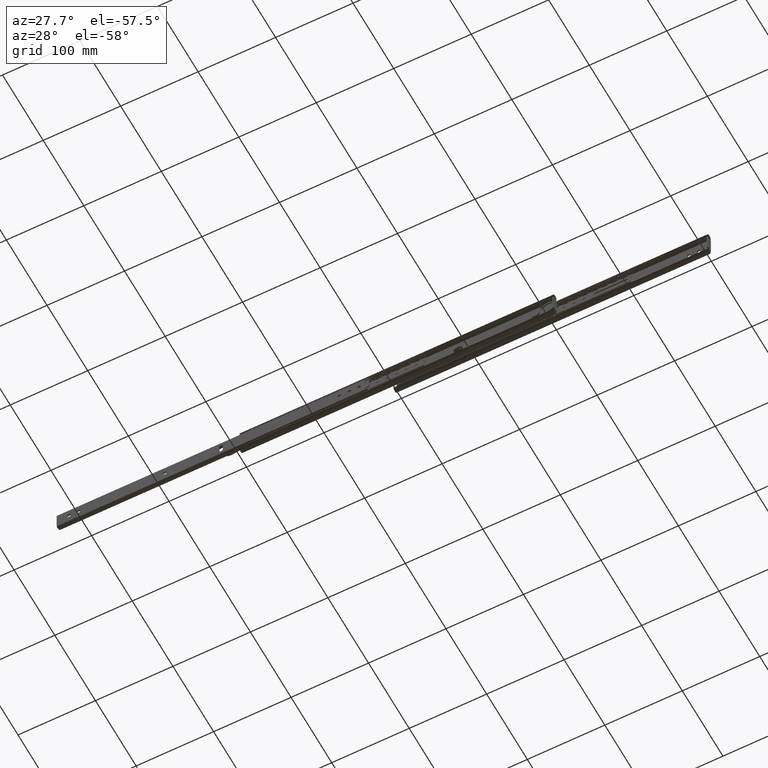
[diagram: clean part render]
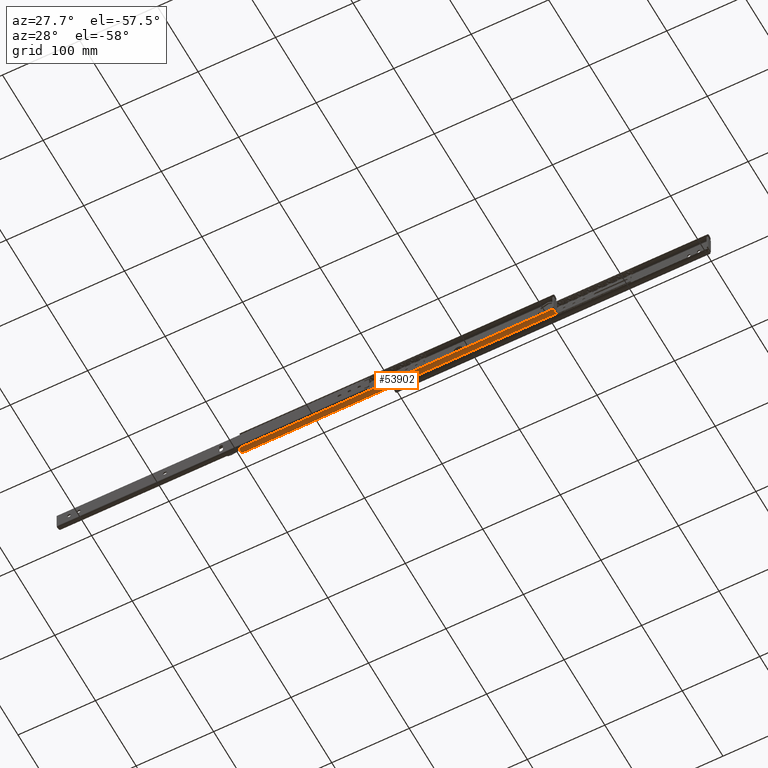
[diagram: same view with one face highlighted and labeled with its STEP entity id]
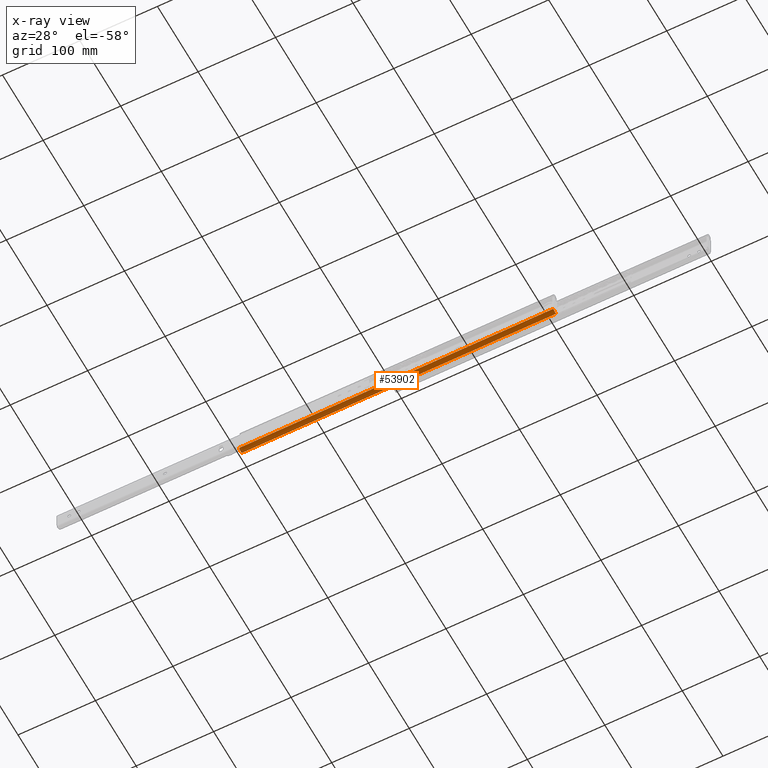
[diagram: x-ray of the same camera — body ghosted, the highlighted face saturated]
A machine part, auxiliary view. The second image highlights one B-rep face of the part: STEP entity #53902.
The next image is the same camera in x-ray: the body ghosted, the highlighted face saturated — about 0% of this face is hidden behind the body in this view.
In plain terms, the highlighted face is a freeform B-spline surface patch.
Its self-contained STEP definition (entity closure, byte-faithful):
#50580=CARTESIAN_POINT('',(-18.299999993714302,15.138563460618050,598.400000000000090));
#50581=VERTEX_POINT('',#50580);
#50582=CARTESIAN_POINT('',(-17.397361481443848,16.501614328666999,600.0));
#50583=VERTEX_POINT('',#50582);
#50584=CARTESIAN_POINT('',(-18.299999993714302,15.138563460618050,598.400000000000090));
#50585=CARTESIAN_POINT('',(-18.300000152610650,15.138563060624060,598.507510650755190));
#50586=CARTESIAN_POINT('',(-18.296078362616019,15.148546636778450,598.613197468237670));
#50587=CARTESIAN_POINT('',(-18.284205451457051,15.177753711239280,598.769101779199790));
#50588=CARTESIAN_POINT('',(-18.279235338719179,15.189876977430041,598.820628880005420));
#50589=CARTESIAN_POINT('',(-18.267076818440529,15.218958878442381,598.922779118537390));
#50590=CARTESIAN_POINT('',(-18.259862174547990,15.235973879352651,598.973457581063260));
#50591=CARTESIAN_POINT('',(-18.235068562867450,15.293049588916350,599.120714077698840));
#50592=CARTESIAN_POINT('',(-18.214272213402140,15.339377905997431,599.213730047606080));
#50593=CARTESIAN_POINT('',(-18.175229616847130,15.420602495763021,599.345529011461510));
#50594=CARTESIAN_POINT('',(-18.160804374952271,15.449821723506480,599.388390999425840));
#50595=CARTESIAN_POINT('',(-18.129370674512259,15.511326164734189,599.470226039969820));
#50596=CARTESIAN_POINT('',(-18.112430805408241,15.543485657188491,599.509084929386520));
#50597=CARTESIAN_POINT('',(-18.057633058469861,15.643828412097900,599.619664179419260));
#50598=CARTESIAN_POINT('',(-18.015838682784050,15.715845951868280,599.685439662761610));
#50599=CARTESIAN_POINT('',(-17.943364282175320,15.830767086955870,599.771909505984350));
#50600=CARTESIAN_POINT('',(-17.917829631880519,15.869798213791251,599.798342710821320));
#50601=CARTESIAN_POINT('',(-17.864384929967400,15.948310864425370,599.846116544576030));
#50602=CARTESIAN_POINT('',(-17.808411749154491,16.027518410732000,599.888982026440660));
#50603=CARTESIAN_POINT('',(-17.747098624700890,16.107761205598461,599.922322139277870));
#50604=CARTESIAN_POINT('',(-17.682936142322511,16.188375003247650,599.950932325407280));
#50605=CARTESIAN_POINT('',(-17.649386098923550,16.228898812355251,599.962849954100190));
#50606=CARTESIAN_POINT('',(-17.546348841798888,16.348385031450938,599.990993506666200));
#50607=CARTESIAN_POINT('',(-17.473837214073779,16.426097027482012,600.000000000000110));
#50608=CARTESIAN_POINT('',(-17.397361481443848,16.501614328666999,600.0));
#50609=B_SPLINE_CURVE_WITH_KNOTS('',3,(#50584,#50585,#50586,#50587,#50588,#50589,#50590,#50591,#50592,#50593,#50594,#50595,#50596,#50597,#50598,#50599,#50600,#50601,#50602,#50603,#50604,#50605,#50606,#50607,#50608),.UNSPECIFIED.,.F.,.U.,(4,2,2,2,2,2,2,2,2,1,2,2,4),(0.0,0.125000000000028,0.187499999999978,0.249999999999927,0.374999999999827,0.437499999999831,0.499999999999836,0.624999999999933,0.687499999999948,0.749999999999963,0.812499999999978,0.874999999999993,1.0),.UNSPECIFIED.);
#50610=EDGE_CURVE('',#50581,#50583,#50609,.T.);
#50766=CARTESIAN_POINT('',(-17.397361481443848,16.501614328666999,194.0));
#50767=VERTEX_POINT('',#50766);
#50768=CARTESIAN_POINT('',(-18.299999993714302,15.138563460618050,195.599999999999990));
#50769=VERTEX_POINT('',#50768);
#50770=CARTESIAN_POINT('',(-17.397361481443848,16.501614328666999,194.0));
#50771=CARTESIAN_POINT('',(-17.473805619575241,16.426128226022779,194.0));
#50772=CARTESIAN_POINT('',(-17.546032535434311,16.348703280249509,194.009002831973990));
#50773=CARTESIAN_POINT('',(-17.648366689732939,16.230104820762129,194.036830947829710));
#50774=CARTESIAN_POINT('',(-17.681474866310442,16.190162416846910,194.048506875193990));
#50775=CARTESIAN_POINT('',(-17.745713980379310,16.109547304402579,194.076973595464890));
#50776=CARTESIAN_POINT('',(-17.776853511728270,16.068838571263111,194.093818583984610));
#50777=CARTESIAN_POINT('',(-17.865269606879451,15.948717816974961,194.151098751051790));
#50778=CARTESIAN_POINT('',(-17.918358795540328,15.870322951846520,194.198518514397190));
#50779=CARTESIAN_POINT('',(-17.990332612938040,15.756336066509411,194.284002465994010));
#50780=CARTESIAN_POINT('',(-18.013163632537609,15.718734348046651,194.315104708912290));
#50781=CARTESIAN_POINT('',(-18.055725418992591,15.646143142053990,194.381318515543710));
#50782=CARTESIAN_POINT('',(-18.075428078467240,15.611224716890440,194.416320724215100));
#50783=CARTESIAN_POINT('',(-18.130331836524402,15.510742359905629,194.526890365007010));
#50784=CARTESIAN_POINT('',(-18.161401111207581,15.449330084751020,194.608092741817300));
#50785=CARTESIAN_POINT('',(-18.214078434105460,15.339821627805470,194.785317902997010));
#50786=CARTESIAN_POINT('',(-18.234910327298831,15.293401327635291,194.878583691911100));
#50787=CARTESIAN_POINT('',(-18.259656052131451,15.236454534644640,195.025201453344610));
#50788=CARTESIAN_POINT('',(-18.266806417014351,15.219599354771910,195.075202352165690));
#50789=CARTESIAN_POINT('',(-18.279044042591440,15.190340599907380,195.177520077977990));
#50790=CARTESIAN_POINT('',(-18.284098708528919,15.178014953838611,195.229663563854390));
#50791=CARTESIAN_POINT('',(-18.296079282785271,15.148547022616791,195.386485037344610));
#50792=CARTESIAN_POINT('',(-18.300000152610650,15.138563060624101,195.492494592945690));
#50793=CARTESIAN_POINT('',(-18.299999993714302,15.138563460618050,195.599999999999990));
#50794=B_SPLINE_CURVE_WITH_KNOTS('',3,(#50770,#50771,#50772,#50773,#50774,#50775,#50776,#50777,#50778,#50779,#50780,#50781,#50782,#50783,#50784,#50785,#50786,#50787,#50788,#50789,#50790,#50791,#50792,#50793),.UNSPECIFIED.,.F.,.U.,(4,2,2,2,2,2,2,2,2,2,2,4),(0.0,0.125000000000010,0.187500000000016,0.250000000000023,0.375000000000026,0.437500000000020,0.500000000000014,0.625000000000026,0.750000000000037,0.812500000000028,0.875000000000019,1.0),.UNSPECIFIED.);
#50795=EDGE_CURVE('',#50767,#50769,#50794,.T.);
#53034=CARTESIAN_POINT('',(-11.484824599747400,16.147869559069349,194.0));
#53035=VERTEX_POINT('',#53034);
#53041=CARTESIAN_POINT('',(-11.420942246821619,16.065402533108600,194.002126666588000));
#53042=VERTEX_POINT('',#53041);
#53043=CARTESIAN_POINT('',(-11.420942246821619,16.065402533108600,194.002126666588000));
#53044=CARTESIAN_POINT('',(-11.441867322067630,16.093158756331491,194.000694154302290));
#53045=CARTESIAN_POINT('',(-11.463161321173670,16.120648236783950,194.0));
#53046=CARTESIAN_POINT('',(-11.484824599747361,16.147869559069399,194.0));
#53047=QUASI_UNIFORM_CURVE('',3,(#53043,#53044,#53045,#53046),.UNSPECIFIED.,.F.,.U.);
#53048=EDGE_CURVE('',#53042,#53035,#53047,.T.);
#53429=CARTESIAN_POINT('',(-11.420942246821619,16.065402533108600,600.0));
#53430=VERTEX_POINT('',#53429);
#53436=CARTESIAN_POINT('',(-11.420942246821561,16.065402533108639,600.0));
#53437=CARTESIAN_POINT('',(-12.508446470660658,17.507930678782582,600.0));
#53438=CARTESIAN_POINT('',(-14.310184207452240,17.639437392491370,600.0));
#53439=CARTESIAN_POINT('',(-16.111921944243829,17.770944106200162,600.0));
#53440=CARTESIAN_POINT('',(-17.397361481443880,16.501614328667031,600.0));
#53448=(BOUNDED_CURVE()B_SPLINE_CURVE(2,(#53436,#53437,#53438,#53439,#53440),.UNSPECIFIED.,.F.,.U.)B_SPLINE_CURVE_WITH_KNOTS((3,2,3),(0.0,0.500000000000000,1.0),.UNSPECIFIED.)CURVE()GEOMETRIC_REPRESENTATION_ITEM()RATIONAL_B_SPLINE_CURVE((1.0,0.910635851455391,1.0,0.910635851455391,1.0))REPRESENTATION_ITEM(''));
#53449=EDGE_CURVE('',#53430,#50583,#53448,.T.);
#53691=CARTESIAN_POINT('',(-18.299999993714302,15.138563460618050,195.599999999999990));
#53692=CARTESIAN_POINT('',(-18.299999993714302,15.138563460618050,598.400000000000090));
#53693=QUASI_UNIFORM_CURVE('',1,(#53691,#53692),.UNSPECIFIED.,.F.,.U.);
#53694=EDGE_CURVE('',#50769,#50581,#53693,.T.);
#53861=CARTESIAN_POINT('',(-18.341471583768850,15.029537253890270,183.849999999999990));
#53862=CARTESIAN_POINT('',(-18.341471583768850,15.029537253890270,610.403749999999950));
#53863=CARTESIAN_POINT('',(-15.670776223526310,22.372588690244008,183.849999999999970));
#53864=CARTESIAN_POINT('',(-15.670776223526310,22.372588690244008,610.403750000000060));
#53865=CARTESIAN_POINT('',(-11.299918167063270,15.895813415895679,183.849999999999990));
#53866=CARTESIAN_POINT('',(-11.299918167063270,15.895813415895679,610.403749999999950));
#53874=(BOUNDED_SURFACE()B_SPLINE_SURFACE(1,2,((#53861,#53863,#53865),(#53862,#53864,#53866)),.UNSPECIFIED.,.F.,.F.,.U.)B_SPLINE_SURFACE_WITH_KNOTS((2,2),(3,3),(0.0,426.553749999999980),(0.0,9.758852551128410),.UNSPECIFIED.)GEOMETRIC_REPRESENTATION_ITEM()RATIONAL_B_SPLINE_SURFACE(((1.0,0.453990499739547,1.0),(1.0,0.453990499739547,1.0)))REPRESENTATION_ITEM('')SURFACE());
#53875=CARTESIAN_POINT('',(-11.484824599747320,16.147869559069409,194.0));
#53876=CARTESIAN_POINT('',(-12.590223276975477,17.536875084912470,194.000000000000060));
#53877=CARTESIAN_POINT('',(-14.362228550385950,17.642893467496918,194.0));
#53878=CARTESIAN_POINT('',(-16.134233823796418,17.748911850081367,194.000000000000060));
#53879=CARTESIAN_POINT('',(-17.397361481443880,16.501614328667031,194.0));
#53887=(BOUNDED_CURVE()B_SPLINE_CURVE(2,(#53875,#53876,#53877,#53878,#53879),.UNSPECIFIED.,.F.,.U.)B_SPLINE_CURVE_WITH_KNOTS((3,2,3),(0.0,0.500000000000000,1.0),.UNSPECIFIED.)CURVE()GEOMETRIC_REPRESENTATION_ITEM()RATIONAL_B_SPLINE_CURVE((1.0,0.913323076196505,1.0,0.913323076196505,1.0))REPRESENTATION_ITEM(''));
#53888=EDGE_CURVE('',#53035,#50767,#53887,.T.);
#53889=ORIENTED_EDGE('',*,*,#53888,.T.);
#53890=ORIENTED_EDGE('',*,*,#50795,.T.);
#53891=ORIENTED_EDGE('',*,*,#53694,.T.);
#53892=ORIENTED_EDGE('',*,*,#50610,.T.);
#53893=ORIENTED_EDGE('',*,*,#53449,.F.);
#53894=CARTESIAN_POINT('',(-11.420942246821619,16.065402533108600,194.002126666588000));
#53895=CARTESIAN_POINT('',(-11.420942246821619,16.065402533108600,600.0));
#53896=QUASI_UNIFORM_CURVE('',1,(#53894,#53895),.UNSPECIFIED.,.F.,.U.);
#53897=EDGE_CURVE('',#53042,#53430,#53896,.T.);
#53898=ORIENTED_EDGE('',*,*,#53897,.F.);
#53899=ORIENTED_EDGE('',*,*,#53048,.T.);
#53900=EDGE_LOOP('',(#53889,#53890,#53891,#53892,#53893,#53898,#53899));
#53901=FACE_OUTER_BOUND('',#53900,.T.);
#53902=ADVANCED_FACE('',(#53901),#53874,.T.);